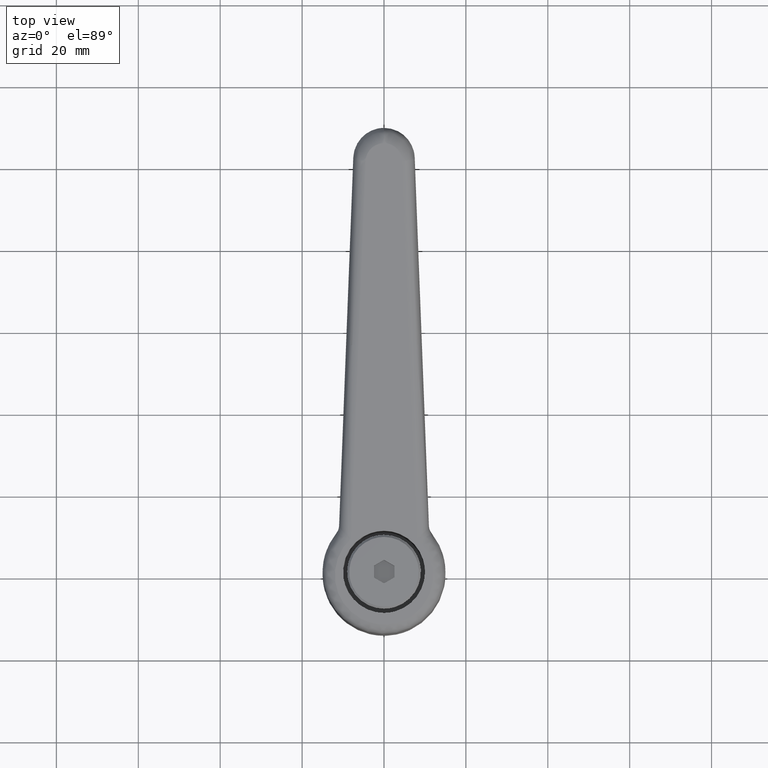
[diagram: clean part render]
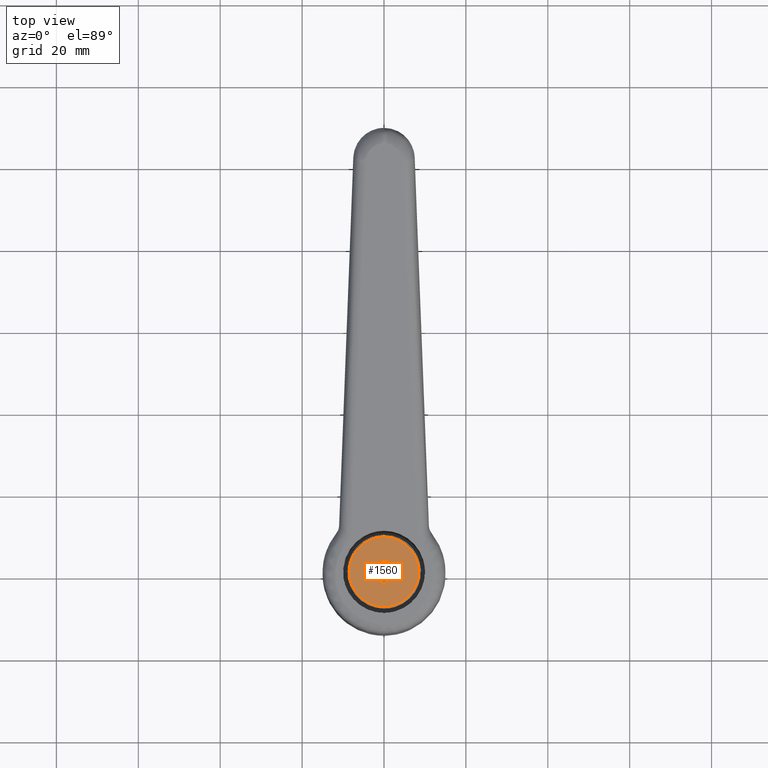
[diagram: same view with one face highlighted and labeled with its STEP entity id]
A machine part, top view. The second image highlights one B-rep face of the part: STEP entity #1560.
In plain terms, the highlighted face is a freeform B-spline surface patch.
Its self-contained STEP definition (entity closure, byte-faithful):
#1225=CARTESIAN_POINT('',(-1.003290994824605,8.440580974093194,50.499999999969589));
#1226=VERTEX_POINT('',#1225);
#1232=CARTESIAN_POINT('',(8.500000000000201,0.0,50.500000000000000));
#1233=VERTEX_POINT('',#1232);
#1234=CARTESIAN_POINT('',(-1.003290994824605,8.440580974093194,50.499999999969589));
#1235=CARTESIAN_POINT('',(-0.503405017282317,8.500000000000201,50.500000000000000));
#1236=CARTESIAN_POINT('',(0.0,8.500000000000201,50.500000000000000));
#1237=CARTESIAN_POINT('',(8.500000000000201,8.500000000000201,50.499999999999993));
#1238=CARTESIAN_POINT('',(8.500000000000201,0.0,50.500000000000000));
#1246=(BOUNDED_CURVE()B_SPLINE_CURVE(2,(#1234,#1235,#1236,#1237,#1238),.UNSPECIFIED.,.F.,.U.)B_SPLINE_CURVE_WITH_KNOTS((3,2,3),(0.229562473506091,0.250000000000000,0.500000000000000),.UNSPECIFIED.)CURVE()GEOMETRIC_REPRESENTATION_ITEM()RATIONAL_B_SPLINE_CURVE((0.956026754169162,0.976055948322456,1.0,0.707106781186548,1.0))REPRESENTATION_ITEM(''));
#1247=EDGE_CURVE('',#1226,#1233,#1246,.T.);
#1249=CARTESIAN_POINT('',(0.518912586528885,-8.484145786619916,50.499999999936747));
#1250=VERTEX_POINT('',#1249);
#1251=CARTESIAN_POINT('',(8.500000000000201,0.0,50.500000000000000));
#1252=CARTESIAN_POINT('',(8.500000000000203,-7.996001567794544,50.500000000000007));
#1253=CARTESIAN_POINT('',(0.518912586528885,-8.484145786619916,50.499999999936747));
#1261=(BOUNDED_CURVE()B_SPLINE_CURVE(2,(#1251,#1252,#1253),.UNSPECIFIED.,.F.,.U.)B_SPLINE_CURVE_WITH_KNOTS((3,3),(0.500000000000000,0.739332962222496),.UNSPECIFIED.)CURVE()GEOMETRIC_REPRESENTATION_ITEM()RATIONAL_B_SPLINE_CURVE((1.0,0.719603993305979,0.976072041631469))REPRESENTATION_ITEM(''));
#1262=EDGE_CURVE('',#1233,#1250,#1261,.T.);
#1295=CARTESIAN_POINT('',(-8.500000000000201,0.0,50.500000000000000));
#1296=VERTEX_POINT('',#1295);
#1297=CARTESIAN_POINT('',(0.518912586528885,-8.484145786619916,50.499999999936747));
#1298=CARTESIAN_POINT('',(0.259698488518082,-8.500000000000201,50.500000000000007));
#1299=CARTESIAN_POINT('',(0.0,-8.500000000000201,50.500000000000000));
#1300=CARTESIAN_POINT('',(-8.500000000000201,-8.500000000000201,50.499999999999993));
#1301=CARTESIAN_POINT('',(-8.500000000000201,0.0,50.500000000000000));
#1309=(BOUNDED_CURVE()B_SPLINE_CURVE(2,(#1297,#1298,#1299,#1300,#1301),.UNSPECIFIED.,.F.,.U.)B_SPLINE_CURVE_WITH_KNOTS((3,2,3),(0.739332962222496,0.750000000000000,1.0),.UNSPECIFIED.)CURVE()GEOMETRIC_REPRESENTATION_ITEM()RATIONAL_B_SPLINE_CURVE((0.976072041631469,0.987502787880569,1.0,0.707106781186548,1.0))REPRESENTATION_ITEM(''));
#1310=EDGE_CURVE('',#1250,#1296,#1309,.T.);
#1312=CARTESIAN_POINT('',(-8.500000000000201,0.0,50.500000000000000));
#1313=CARTESIAN_POINT('',(-8.500000000000204,7.549483470157071,50.500000000000000));
#1314=CARTESIAN_POINT('',(-1.003290994824605,8.440580974093194,50.499999999969589));
#1322=(BOUNDED_CURVE()B_SPLINE_CURVE(2,(#1312,#1313,#1314),.UNSPECIFIED.,.F.,.U.)B_SPLINE_CURVE_WITH_KNOTS((3,3),(0.0,0.229562473506091),.UNSPECIFIED.)CURVE()GEOMETRIC_REPRESENTATION_ITEM()RATIONAL_B_SPLINE_CURVE((1.0,0.731050832864092,0.956026754169162))REPRESENTATION_ITEM(''));
#1323=EDGE_CURVE('',#1296,#1226,#1322,.T.);
#1384=CARTESIAN_POINT('',(-2.886756999997230,-0.000013856417711,50.500000000000000));
#1385=VERTEX_POINT('',#1384);
#1386=CARTESIAN_POINT('',(-1.443375000000090,2.500000000000000,50.500000000000000));
#1387=VERTEX_POINT('',#1386);
#1388=CARTESIAN_POINT('',(-2.886756999997230,-0.000013856417711,50.500000000000000));
#1389=CARTESIAN_POINT('',(-1.443375000000090,2.500000000000000,50.500000000000000));
#1390=QUASI_UNIFORM_CURVE('',1,(#1388,#1389),.UNSPECIFIED.,.F.,.U.);
#1391=EDGE_CURVE('',#1385,#1387,#1390,.T.);
#1412=CARTESIAN_POINT('',(-1.443390000000000,-2.500000000000000,50.500000000000000));
#1413=VERTEX_POINT('',#1412);
#1414=CARTESIAN_POINT('',(-1.443390000000000,-2.500000000000000,50.500000000000000));
#1415=CARTESIAN_POINT('',(-2.886756999997230,-0.000013856417711,50.500000000000000));
#1416=QUASI_UNIFORM_CURVE('',1,(#1414,#1415),.UNSPECIFIED.,.F.,.U.);
#1417=EDGE_CURVE('',#1413,#1385,#1416,.T.);
#1434=CARTESIAN_POINT('',(1.443375000000000,-2.500000000000000,50.500000000000000));
#1435=VERTEX_POINT('',#1434);
#1436=CARTESIAN_POINT('',(1.443375000000000,-2.500000000000000,50.500000000000000));
#1437=CARTESIAN_POINT('',(-1.443390000000000,-2.500000000000000,50.500000000000000));
#1438=QUASI_UNIFORM_CURVE('',1,(#1436,#1437),.UNSPECIFIED.,.F.,.U.);
#1439=EDGE_CURVE('',#1435,#1413,#1438,.T.);
#1456=CARTESIAN_POINT('',(2.886741500002555,-0.000012990391703,50.500000000000000));
#1457=VERTEX_POINT('',#1456);
#1458=CARTESIAN_POINT('',(2.886741500002555,-0.000012990391703,50.500000000000000));
#1459=CARTESIAN_POINT('',(1.443375000000000,-2.500000000000000,50.500000000000000));
#1460=QUASI_UNIFORM_CURVE('',1,(#1458,#1459),.UNSPECIFIED.,.F.,.U.);
#1461=EDGE_CURVE('',#1457,#1435,#1460,.T.);
#1478=CARTESIAN_POINT('',(1.443358999999900,2.500000000000000,50.500000000000000));
#1479=VERTEX_POINT('',#1478);
#1480=CARTESIAN_POINT('',(1.443358999999900,2.500000000000000,50.500000000000000));
#1481=CARTESIAN_POINT('',(2.886741500002555,-0.000012990391703,50.500000000000000));
#1482=QUASI_UNIFORM_CURVE('',1,(#1480,#1481),.UNSPECIFIED.,.F.,.U.);
#1483=EDGE_CURVE('',#1479,#1457,#1482,.T.);
#1500=CARTESIAN_POINT('',(-1.443375000000090,2.500000000000000,50.500000000000000));
#1501=CARTESIAN_POINT('',(1.443358999999900,2.500000000000000,50.500000000000000));
#1502=QUASI_UNIFORM_CURVE('',1,(#1500,#1501),.UNSPECIFIED.,.F.,.U.);
#1503=EDGE_CURVE('',#1387,#1479,#1502,.T.);
#1541=CARTESIAN_POINT('',(-9.349149967050924,-9.348942765438340,50.500000000000000));
#1542=CARTESIAN_POINT('',(9.349150423026455,-9.348942765438340,50.500000000000000));
#1543=CARTESIAN_POINT('',(-9.349149967050924,9.348995354616424,50.500000000000000));
#1544=CARTESIAN_POINT('',(9.349150423026455,9.348995354616424,50.500000000000000));
#1545=B_SPLINE_SURFACE_WITH_KNOTS('',1,1,((#1541,#1543),(#1542,#1544)),.UNSPECIFIED.,.F.,.F.,.U.,(2,2),(2,2),(0.0,18.698300390077382),(0.0,18.697938120054769),.UNSPECIFIED.);
#1546=ORIENTED_EDGE('',*,*,#1310,.F.);
#1547=ORIENTED_EDGE('',*,*,#1262,.F.);
#1548=ORIENTED_EDGE('',*,*,#1247,.F.);
#1549=ORIENTED_EDGE('',*,*,#1323,.F.);
#1550=EDGE_LOOP('',(#1546,#1547,#1548,#1549));
#1551=FACE_OUTER_BOUND('',#1550,.T.);
#1552=ORIENTED_EDGE('',*,*,#1391,.T.);
#1553=ORIENTED_EDGE('',*,*,#1503,.T.);
#1554=ORIENTED_EDGE('',*,*,#1483,.T.);
#1555=ORIENTED_EDGE('',*,*,#1461,.T.);
#1556=ORIENTED_EDGE('',*,*,#1439,.T.);
#1557=ORIENTED_EDGE('',*,*,#1417,.T.);
#1558=EDGE_LOOP('',(#1552,#1553,#1554,#1555,#1556,#1557));
#1559=FACE_BOUND('',#1558,.T.);
#1560=ADVANCED_FACE('',(#1551,#1559),#1545,.T.);